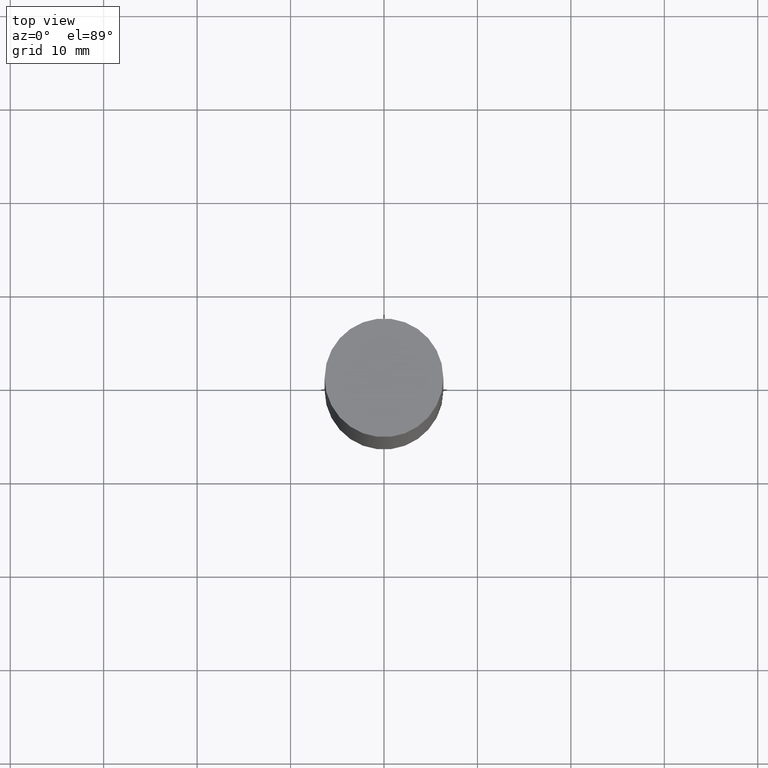
[diagram: clean part render]
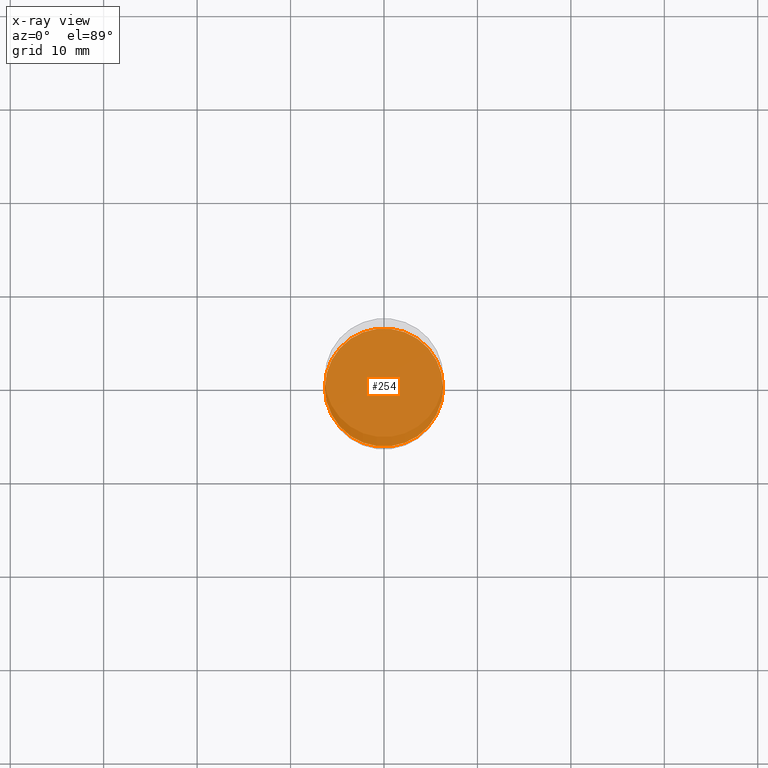
[diagram: x-ray — body ghosted, one internal face saturated and labeled with its STEP entity id]
A machine part, top view, then the same camera in x-ray: the body is ghosted and one INTERNAL B-rep face — a face not visible from any outside direction — is saturated and labeled: STEP entity #254.
In plain terms, the highlighted planar face has unit normal (-0, 0, 1).
Its self-contained STEP definition (entity closure, byte-faithful):
#3 = DIRECTION ( 'NONE',  ( 1.000000000000000000, -6.982962677686269866E-15, 0.000000000000000000 ) ) ;
#61 = DIRECTION ( 'NONE',  ( 1.000000000000000000, -6.982962677686265922E-15, 4.876176775795935793E-29 ) ) ;
#66 = CARTESIAN_POINT ( 'NONE',  ( 5.807988414689700538E-29, -8.292268179752471696E-15, -2.375000000000000000 ) ) ;
#69 = ORIENTED_EDGE ( 'NONE', *, *, #97, .F. ) ;
#85 = EDGE_CURVE ( 'NONE', #198, #659, #334, .T. ) ;
#97 = EDGE_CURVE ( 'NONE', #659, #198, #389, .T. ) ;
#110 = DIRECTION ( 'NONE',  ( -2.445468806185136597E-29, 3.491481338843145583E-15, 1.000000000000000000 ) ) ;
#173 = DIRECTION ( 'NONE',  ( -2.438088387897960049E-29, 3.491481338843145188E-15, 1.000000000000000000 ) ) ;
#176 = CARTESIAN_POINT ( 'NONE',  ( 0.2489999999999999991, -1.003102588649635236E-14, -2.375000000000000000 ) ) ;
#198 = VERTEX_POINT ( 'NONE', #176 ) ;
#201 = DIRECTION ( 'NONE',  ( 1.000000000000000000, -6.982962677686269866E-15, 0.000000000000000000 ) ) ;
#254 = ADVANCED_FACE ( 'NONE', ( #382 ), #535, .F. ) ;
#259 = AXIS2_PLACEMENT_3D ( 'NONE', #66, #173, #61 ) ;
#334 = CIRCLE ( 'NONE', #657, 0.2489999999999999991 ) ;
#382 = FACE_OUTER_BOUND ( 'NONE', #403, .T. ) ;
#389 = CIRCLE ( 'NONE', #536, 0.2489999999999999991 ) ;
#403 = EDGE_LOOP ( 'NONE', ( #407, #69 ) ) ;
#407 = ORIENTED_EDGE ( 'NONE', *, *, #85, .F. ) ;
#471 = CARTESIAN_POINT ( 'NONE',  ( 5.807988414689700538E-29, -8.292268179752471696E-15, -2.375000000000000000 ) ) ;
#490 = CARTESIAN_POINT ( 'NONE',  ( -0.2489999999999999991, -6.517718313361599048E-15, -2.375000000000000000 ) ) ;
#535 = PLANE ( 'NONE',  #259 ) ;
#536 = AXIS2_PLACEMENT_3D ( 'NONE', #677, #625, #201 ) ;
#625 = DIRECTION ( 'NONE',  ( -2.445468806185136597E-29, 3.491481338843145583E-15, 1.000000000000000000 ) ) ;
#657 = AXIS2_PLACEMENT_3D ( 'NONE', #471, #110, #3 ) ;
#659 = VERTEX_POINT ( 'NONE', #490 ) ;
#677 = CARTESIAN_POINT ( 'NONE',  ( 5.807988414689700538E-29, -8.292268179752471696E-15, -2.375000000000000000 ) ) ;